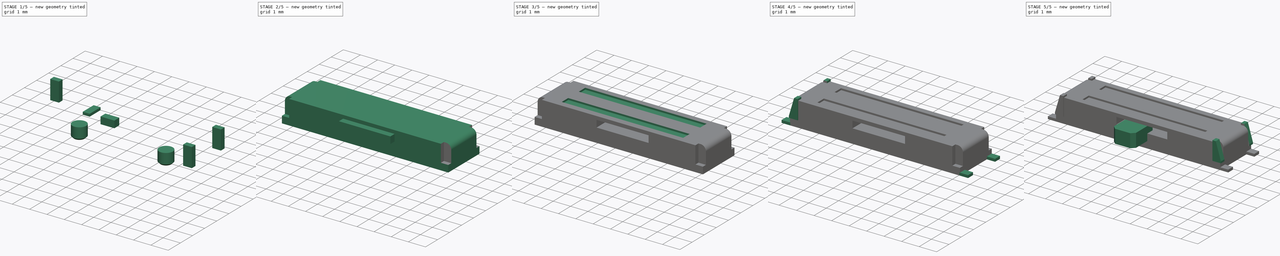
[diagram: build sequence overview — one tinted view per stage of 5, left to right]
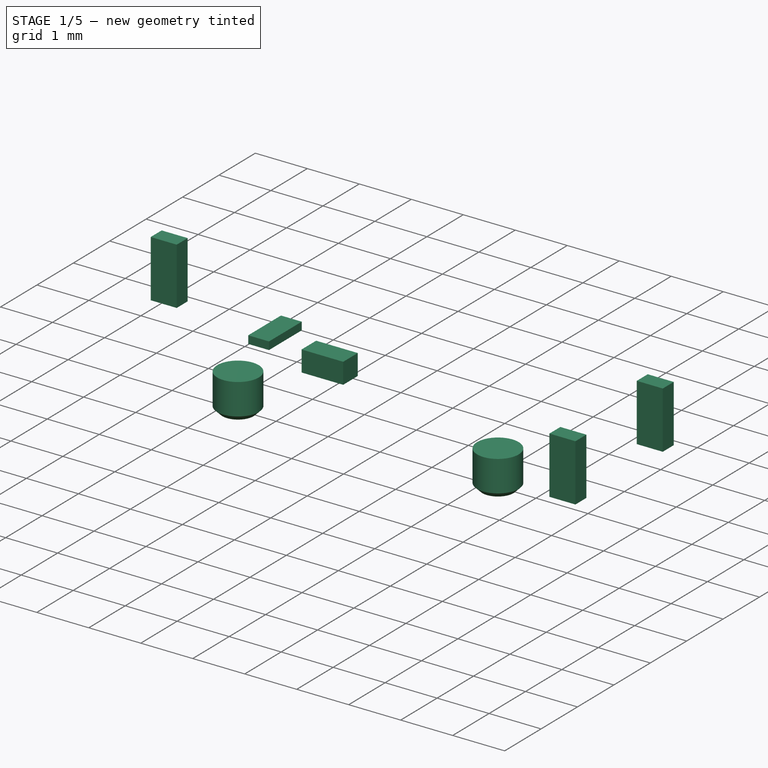
[diagram: stage 1 of 5 — iso view after this stage's code; geometry added in this stage tinted green]
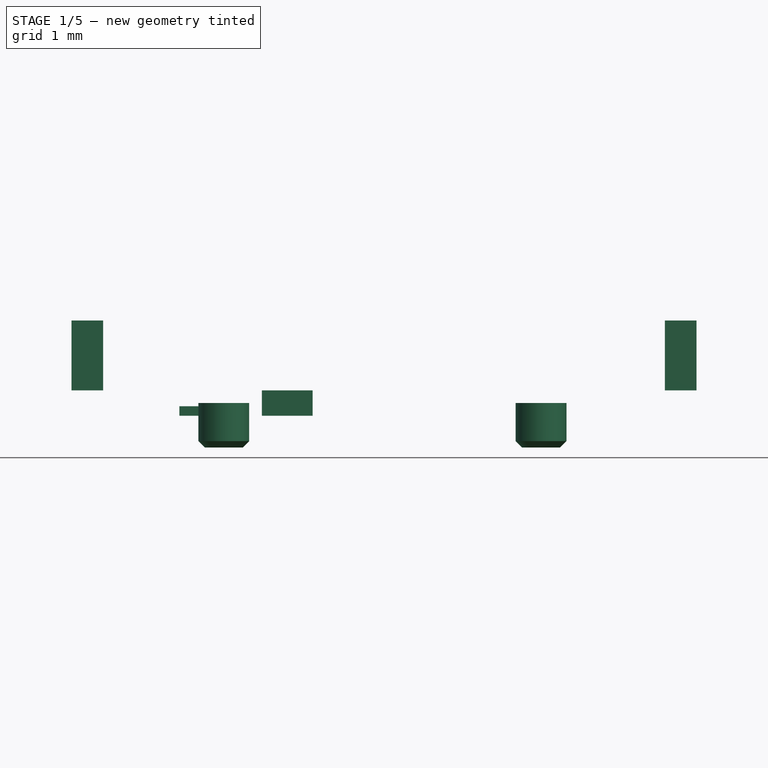
[diagram: stage 1 of 5 — front view after this stage's code; geometry added in this stage tinted green]
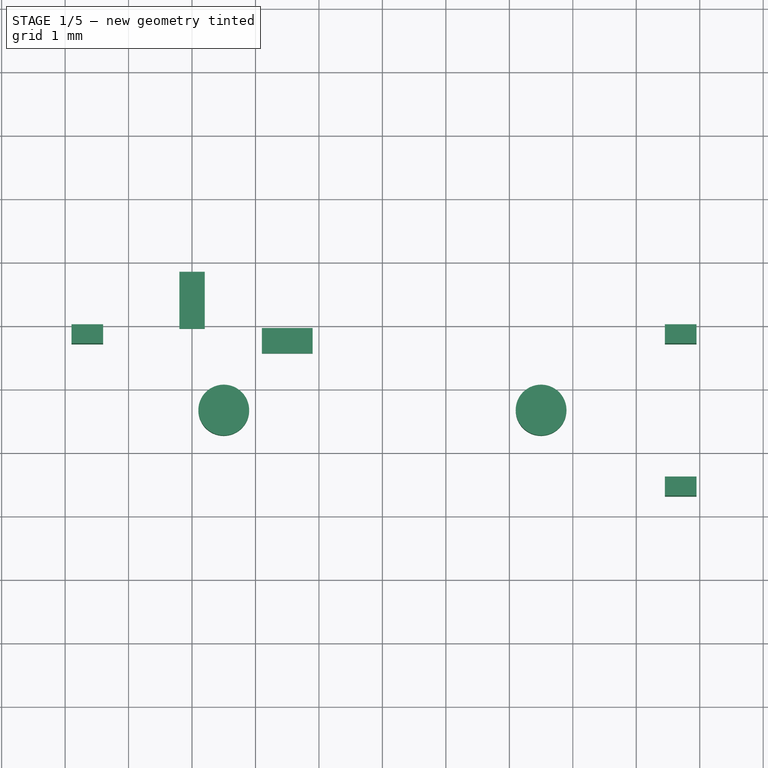
[diagram: stage 1 of 5 — top view after this stage's code; geometry added in this stage tinted green]
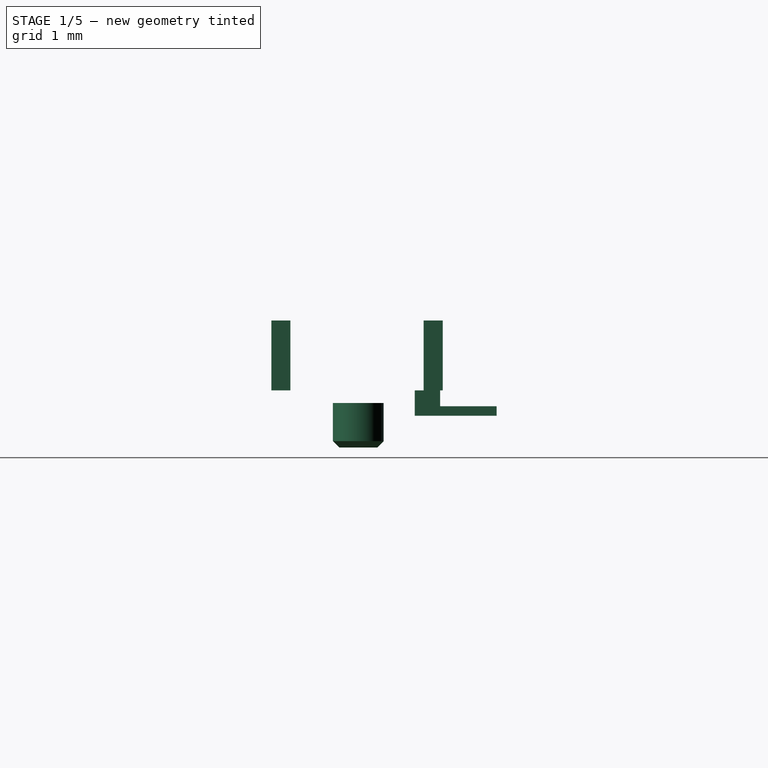
[diagram: stage 1 of 5 — right view after this stage's code; geometry added in this stage tinted green]
FCSTD DOCUMENT  (FreeCAD 0.17R11223 (Git))
Label: PCM13SMTR_07
License: All rights reserved
LicenseURL: http://en.wikipedia.org/wiki/All_rights_reserved
objects: Part::Box×25, Part::Chamfer×8, Part::Cut×7, Part::Cylinder×2, Part::Fillet×2, Sketcher::SketchObject×1, PartDesign::Pad×1, PartDesign::Body×1, Part::MultiFuse×1
note: 49 computed .brp shape members not serialized (recipe doc carries the construction recipe); baked Part::Feature solids carry a one-line shape summary decoded from their .brp

FEATURE [Part::Cylinder] Cylinder  label="Legg002"
  Angle = 360
  AttacherType = Attacher::AttachEngine3D
  Height = 0.7
  Placement = pos=(2.5,-0.33,-0.5) rot=(0,0,1;0rad)
  Radius = 0.4
FEATURE [Part::Cylinder] Cylinder001  label="Legg001"
  Angle = 360
  AttacherType = Attacher::AttachEngine3D
  Height = 0.7
  Placement = pos=(-2.5,-0.33,-0.5) rot=(0,0,1;0rad)
  Radius = 0.4
FEATURE [Part::Box] Box022  label="Kub015"
  AttacherType = Attacher::AttachEngine3D
  Height = 1.1
  Length = 0.5
  Placement = pos=(-4.9,0.7,0.4) rot=(0,0,1;0rad)
  Width = 0.3
FEATURE [Part::Box] Box023  label="Kub016"
  AttacherType = Attacher::AttachEngine3D
  Height = 1.1
  Length = 0.5
  Placement = pos=(4.45,-1.7,0.4) rot=(0,0,1;0rad)
  Width = 0.3
FEATURE [Part::Box] Box024  label="Kub017"
  AttacherType = Attacher::AttachEngine3D
  Height = 1.1
  Length = 0.5
  Placement = pos=(4.45,0.7,0.4) rot=(0,0,1;0rad)
  Width = 0.3
FEATURE [Part::Box] Box025  label="Leg008"
  AttacherType = Attacher::AttachEngine3D
  Height = 0.15
  Length = 0.4
  Placement = pos=(-3.2,0.95,0) rot=(0,0,1;0rad)
  Width = 0.9
FEATURE [Part::Box] Box026  label="Kub018"
  AttacherType = Attacher::AttachEngine3D
  Height = 0.4
  Length = 0.8
  Placement = pos=(-1.9,0.56,0) rot=(0,0,1;0rad)
  Width = 0.4
FEATURE [Part::Chamfer] Chamfer009
  Base = -> Cylinder001
  Edges = 1 edges r=0.1: [Edge3]
FEATURE [Part::Chamfer] Chamfer010
  Base = -> Cylinder
  Edges = 1 edges r=0.1: [Edge3]
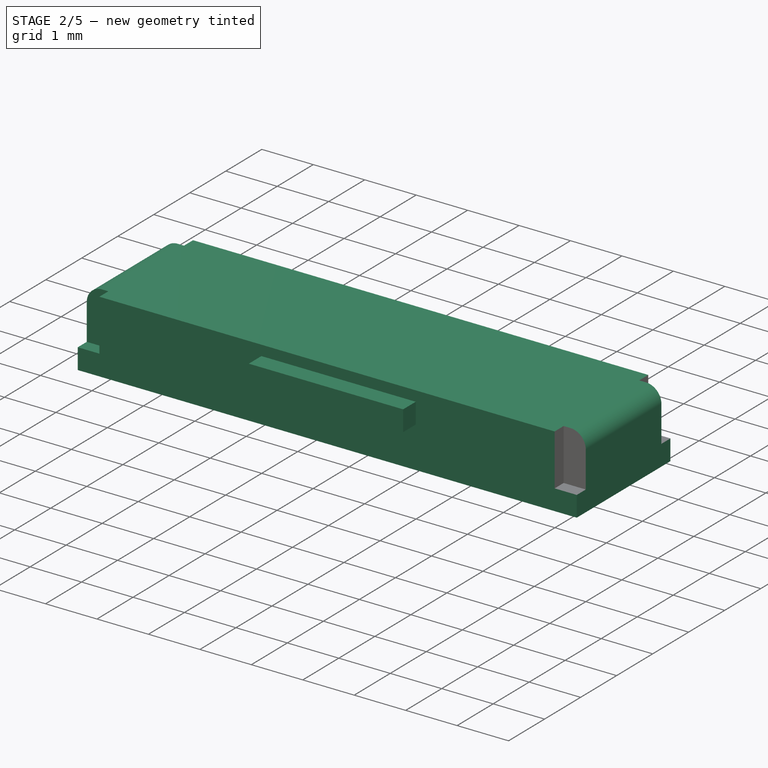
[diagram: stage 2 of 5 — iso view after this stage's code; geometry added in this stage tinted green]
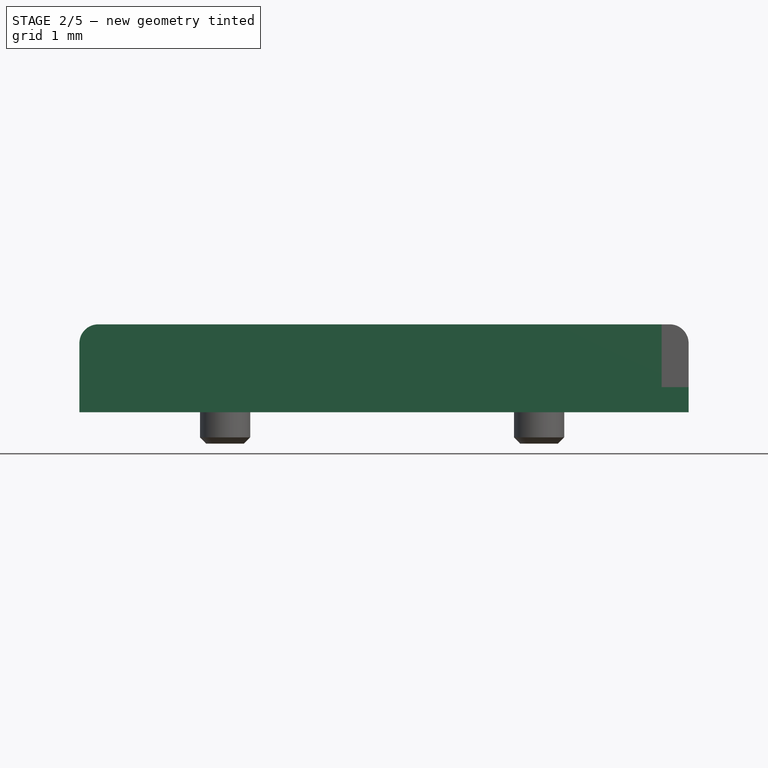
[diagram: stage 2 of 5 — front view after this stage's code; geometry added in this stage tinted green]
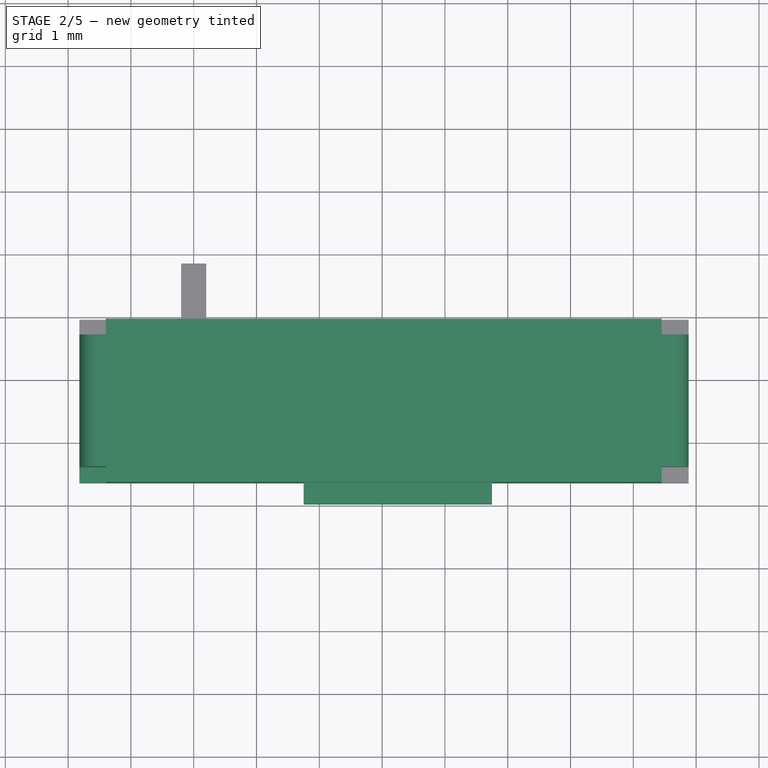
[diagram: stage 2 of 5 — top view after this stage's code; geometry added in this stage tinted green]
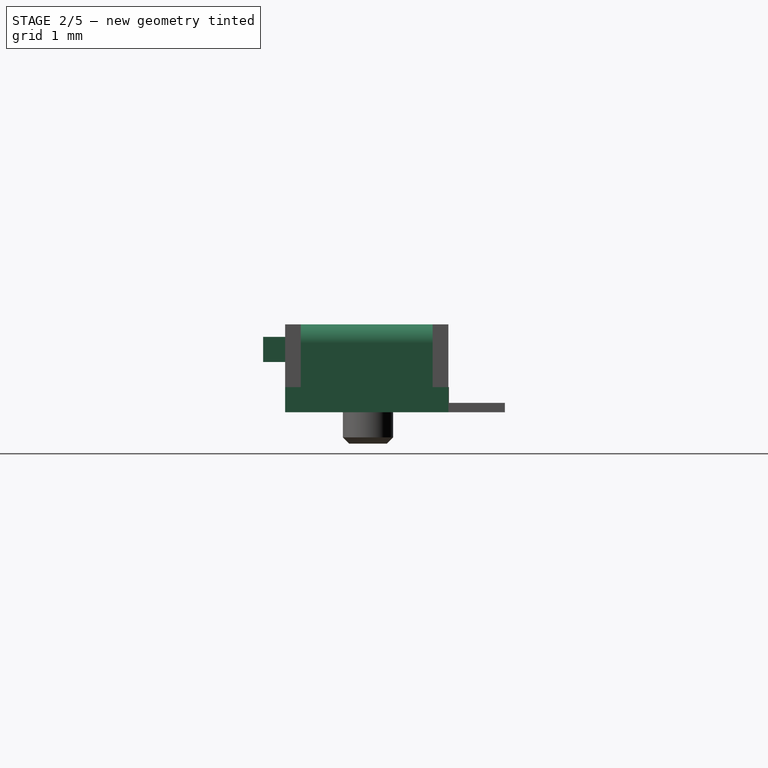
[diagram: stage 2 of 5 — right view after this stage's code; geometry added in this stage tinted green]
FEATURE [Sketcher::SketchObject] Sketch
  MapMode = 5
  Support = -> [XY_Plane]
  sketch-geometry (4):
    g0: LineSegment StartX=-4.82 StartY=0.95 StartZ=0 EndX=4.88 EndY=0.95 EndZ=0
    g1: LineSegment StartX=4.88 StartY=0.95 StartZ=0 EndX=4.88 EndY=-1.65 EndZ=0
    g2: LineSegment StartX=4.88 StartY=-1.65 StartZ=0 EndX=-4.82 EndY=-1.65 EndZ=0
    g3: LineSegment StartX=-4.82 StartY=-1.65 StartZ=0 EndX=-4.82 EndY=0.95 EndZ=0
  constraints (12):
    c: Coincident(g0,g1)
    c: Coincident(g1,g2)
    c: Coincident(g2,g3)
    c: Coincident(g3,g0)
    c: Horizontal(g0)
    c: Horizontal(g2)
    c: Vertical(g1)
    c: Vertical(g3)
    c: DistanceX(g0,g0) = 9.7
    c: DistanceY(g1,g0) = 2.6
    c: DistanceX(g2,g-1) = 4.82
    c: DistanceY(g-1,g0) = 0.95
FEATURE [PartDesign::Pad] Pad
  Length = 1.4
  Length2 = 100
  Profile = -> Sketch
  Type = 0
FEATURE [PartDesign::Body] Body
  Group = -> [Sketch,Pad]
  Origin = -> BodyOrigin
  Tip = -> Pad
FEATURE [Part::Box] Box  label="Kub"
  AttacherType = Attacher::AttachEngine3D
  Height = 0.4
  Length = 3
  Placement = pos=(-1.25,-2,0.8) rot=(0,0,1;0rad)
  Width = 2
FEATURE [Part::Fillet] Fillet
  Base = -> Pad
  Edges = 1 edges r=0.3: [Edge12]
FEATURE [Part::Box] Box021  label="Kub014"
  AttacherType = Attacher::AttachEngine3D
  Height = 1.1
  Length = 0.5
  Placement = pos=(-4.9,-1.7,0.4) rot=(0,0,1;0rad)
  Width = 0.3
FEATURE [Part::Cut] Cut
  Base = -> Fillet
  Tool = -> Box021
FEATURE [Part::Cut] Cut001
  Base = -> Cut
  Tool = -> Box022
FEATURE [Part::Cut] Cut002
  Base = -> Cut001
  Tool = -> Box023
FEATURE [Part::Fillet] Fillet007
  Base = -> Cut002
  Edges = 1 edges r=0.3: [Edge13]
FEATURE [Part::Cut] Cut003
  Base = -> Fillet007
  Tool = -> Box024
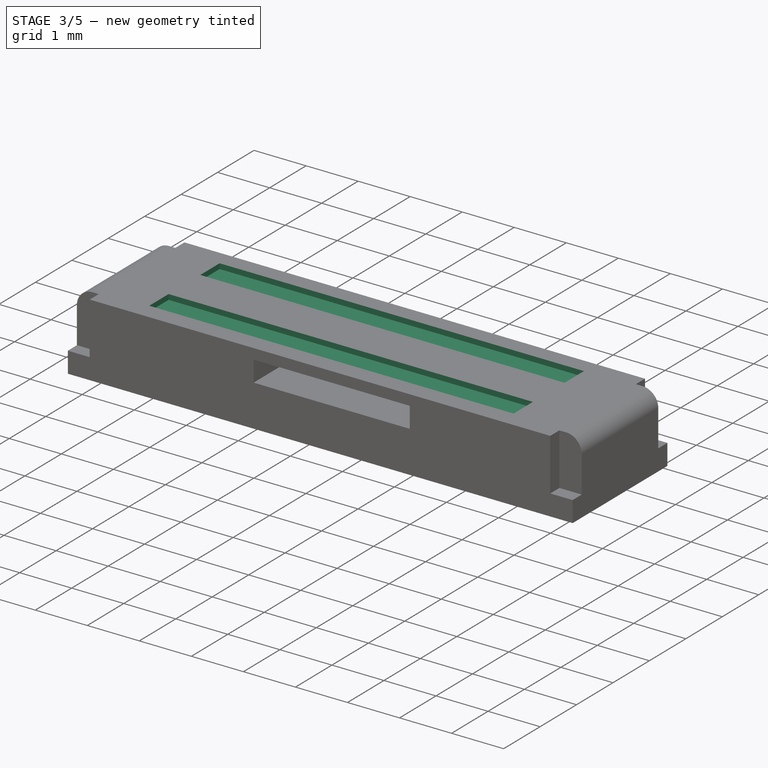
[diagram: stage 3 of 5 — iso view after this stage's code; geometry added in this stage tinted green]
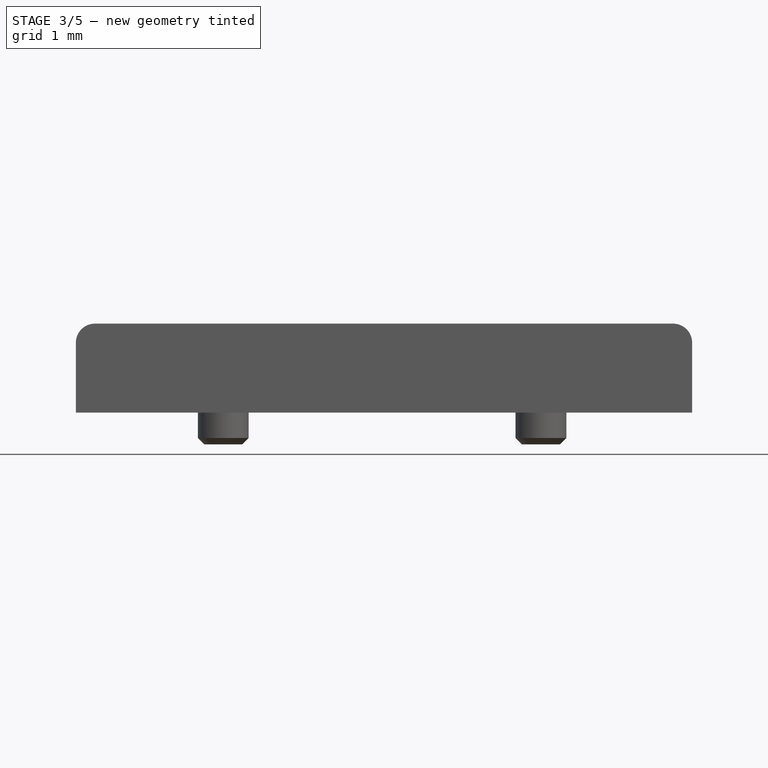
[diagram: stage 3 of 5 — front view after this stage's code; geometry added in this stage tinted green]
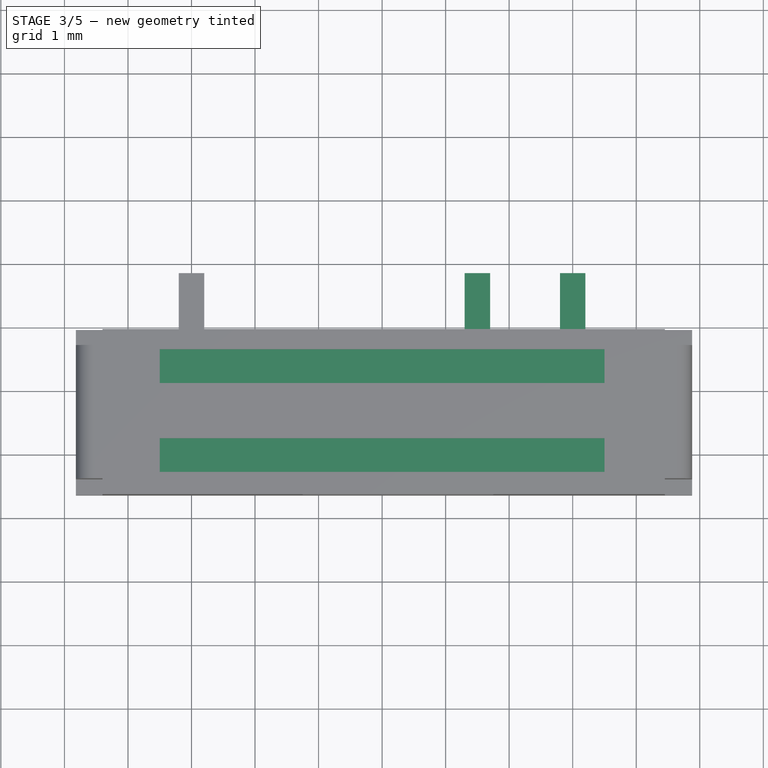
[diagram: stage 3 of 5 — top view after this stage's code; geometry added in this stage tinted green]
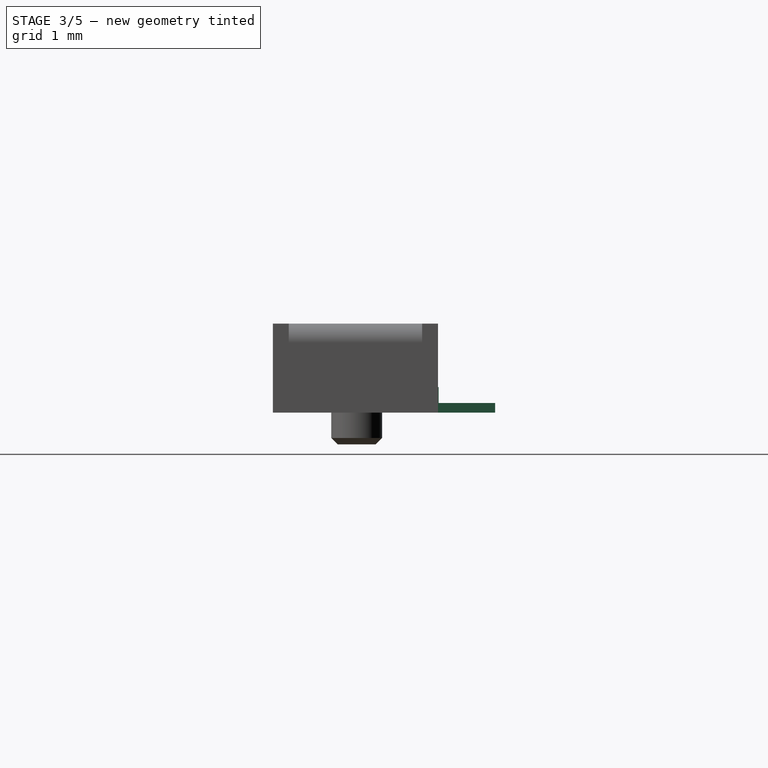
[diagram: stage 3 of 5 — right view after this stage's code; geometry added in this stage tinted green]
FEATURE [Part::Box] Box014  label="Leg006"
  AttacherType = Attacher::AttachEngine3D
  Height = 0.15
  Length = 0.4
  Placement = pos=(1.3,0.95,0) rot=(0,0,1;0rad)
  Width = 0.9
FEATURE [Part::Box] Box015  label="Leg007"
  AttacherType = Attacher::AttachEngine3D
  Height = 0.15
  Length = 0.4
  Placement = pos=(2.8,0.95,0) rot=(0,0,1;0rad)
  Width = 0.9
FEATURE [Part::Box] Box016  label="Kub009"
  AttacherType = Attacher::AttachEngine3D
  Height = 0.4
  Length = 0.8
  Placement = pos=(2.6,0.56,0) rot=(0,0,1;0rad)
  Width = 0.4
FEATURE [Part::Box] Box017  label="Kub010"
  AttacherType = Attacher::AttachEngine3D
  Height = 0.4
  Length = 0.8
  Placement = pos=(1.1,0.56,0) rot=(0,0,1;0rad)
  Width = 0.4
FEATURE [Part::Box] Box018  label="Kub011"
  AttacherType = Attacher::AttachEngine3D
  Height = 0.4
  Length = 0.8
  Placement = pos=(-3.4,0.56,0) rot=(0,0,1;0rad)
  Width = 0.4
FEATURE [Part::Box] Box019  label="Kub012"
  AttacherType = Attacher::AttachEngine3D
  Height = 0.2
  Length = 7
  Placement = pos=(-3.5,0.1,1.3) rot=(0,0,1;0rad)
  Width = 0.53
FEATURE [Part::Box] Box020  label="Kub013"
  AttacherType = Attacher::AttachEngine3D
  Height = 0.2
  Length = 7
  Placement = pos=(-3.5,-1.3,1.3) rot=(0,0,1;0rad)
  Width = 0.53
FEATURE [Part::Cut] Cut004
  Base = -> Cut003
  Tool = -> Box
FEATURE [Part::Cut] Cut005
  Base = -> Cut004
  Tool = -> Box019
FEATURE [Part::Cut] Cut006
  Base = -> Cut005
  Tool = -> Box020
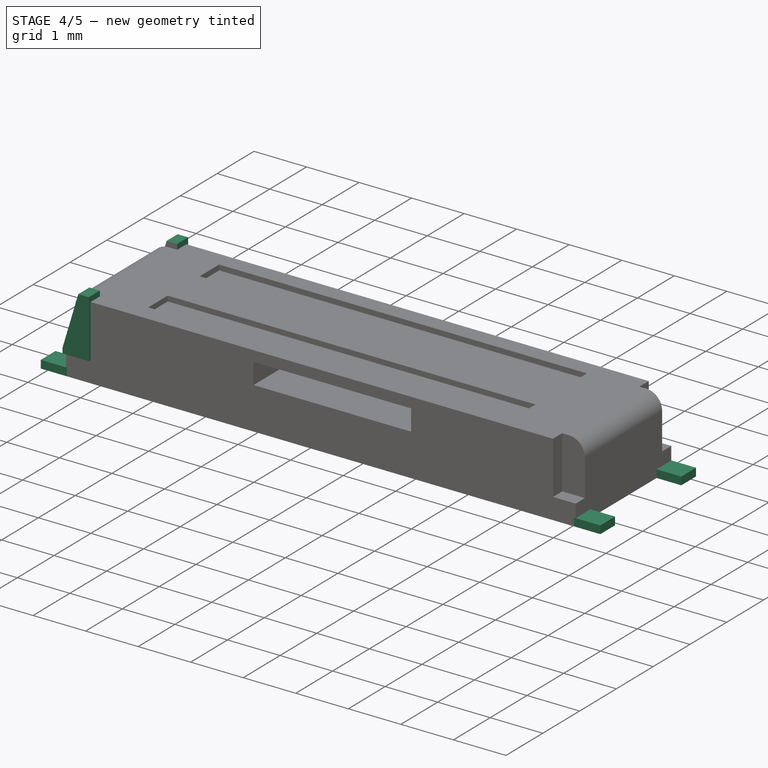
[diagram: stage 4 of 5 — iso view after this stage's code; geometry added in this stage tinted green]
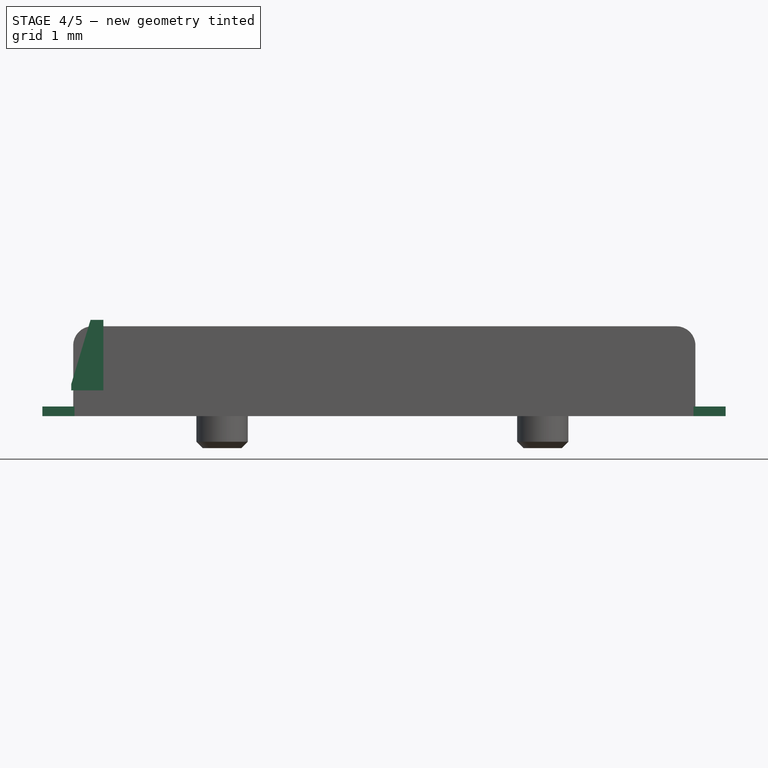
[diagram: stage 4 of 5 — front view after this stage's code; geometry added in this stage tinted green]
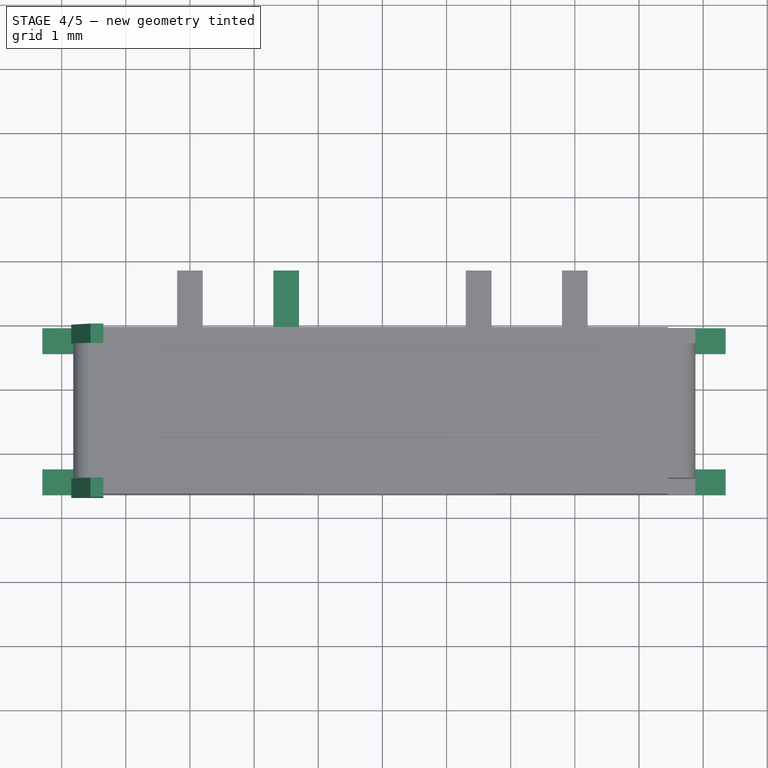
[diagram: stage 4 of 5 — top view after this stage's code; geometry added in this stage tinted green]
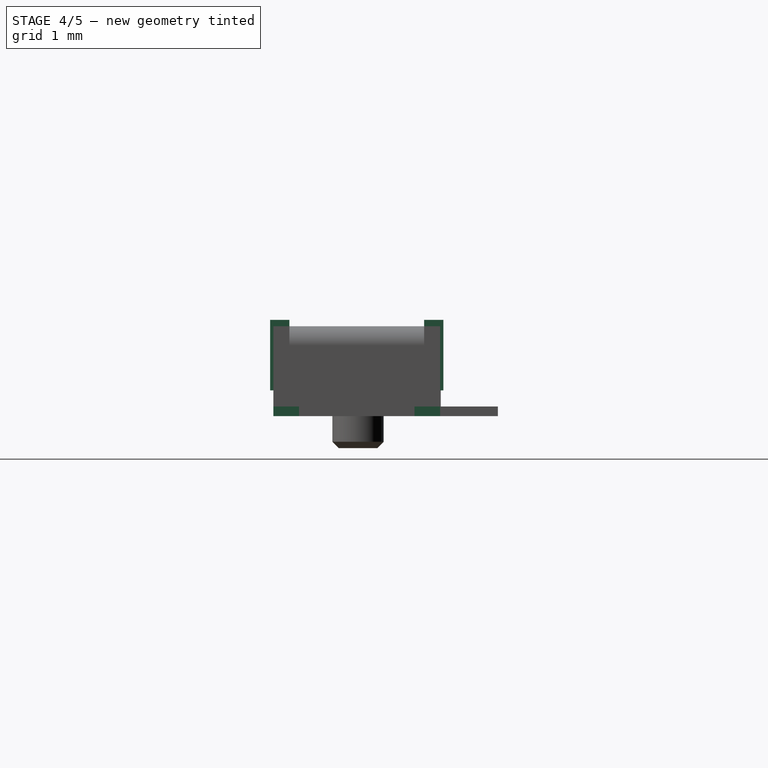
[diagram: stage 4 of 5 — right view after this stage's code; geometry added in this stage tinted green]
FEATURE [Part::Box] Box007  label="Kub007"
  AttacherType = Attacher::AttachEngine3D
  Height = 1.1
  Length = 0.5
  Placement = pos=(2.85,-1.3,0.4) rot=(0,0,1;0rad)
  Width = 0.3
FEATURE [Part::Chamfer] Chamfer007  label="Corner003"
  Base = -> Box007
  Edges = 1 edges: [Edge6 r1=1 r2=0.3]
  Placement = pos=(-1.5,-0.3,0) rot=(0,0,1;3.14159rad)
FEATURE [Part::Box] Box008  label="Kub008"
  AttacherType = Attacher::AttachEngine3D
  Height = 1.1
  Length = 0.5
  Placement = pos=(2.85,-1.3,0.4) rot=(0,0,1;0rad)
  Width = 0.3
FEATURE [Part::Chamfer] Chamfer008  label="Corner004"
  Base = -> Box008
  Edges = 1 edges: [Edge6 r1=1 r2=0.3]
  Placement = pos=(-1.5,-2.7,0) rot=(0,0,1;3.14159rad)
FEATURE [Part::Box] Box009  label="Leg001"
  AttacherType = Attacher::AttachEngine3D
  Height = 0.15
  Length = 0.5
  Placement = pos=(4.85,-1.65,0) rot=(0,0,1;0rad)
  Width = 0.4
FEATURE [Part::Box] Box010  label="Leg002"
  AttacherType = Attacher::AttachEngine3D
  Height = 0.15
  Length = 0.5
  Placement = pos=(4.85,0.55,0) rot=(0,0,1;0rad)
  Width = 0.4
FEATURE [Part::Box] Box011  label="Leg003"
  AttacherType = Attacher::AttachEngine3D
  Height = 0.15
  Length = 0.5
  Placement = pos=(-5.3,-1.65,0) rot=(0,0,1;0rad)
  Width = 0.4
FEATURE [Part::Box] Box012  label="Leg004"
  AttacherType = Attacher::AttachEngine3D
  Height = 0.15
  Length = 0.5
  Placement = pos=(-5.3,0.55,0) rot=(0,0,1;0rad)
  Width = 0.4
FEATURE [Part::Box] Box013  label="Leg005"
  AttacherType = Attacher::AttachEngine3D
  Height = 0.15
  Length = 0.4
  Placement = pos=(-1.7,0.95,0) rot=(0,0,1;0rad)
  Width = 0.9
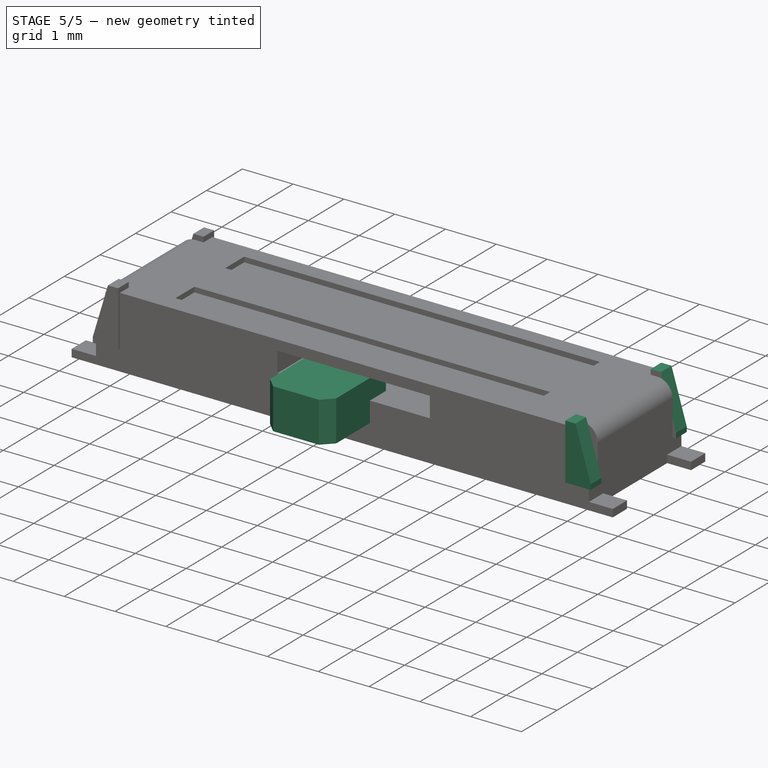
[diagram: stage 5 of 5 — iso view after this stage's code; geometry added in this stage tinted green]
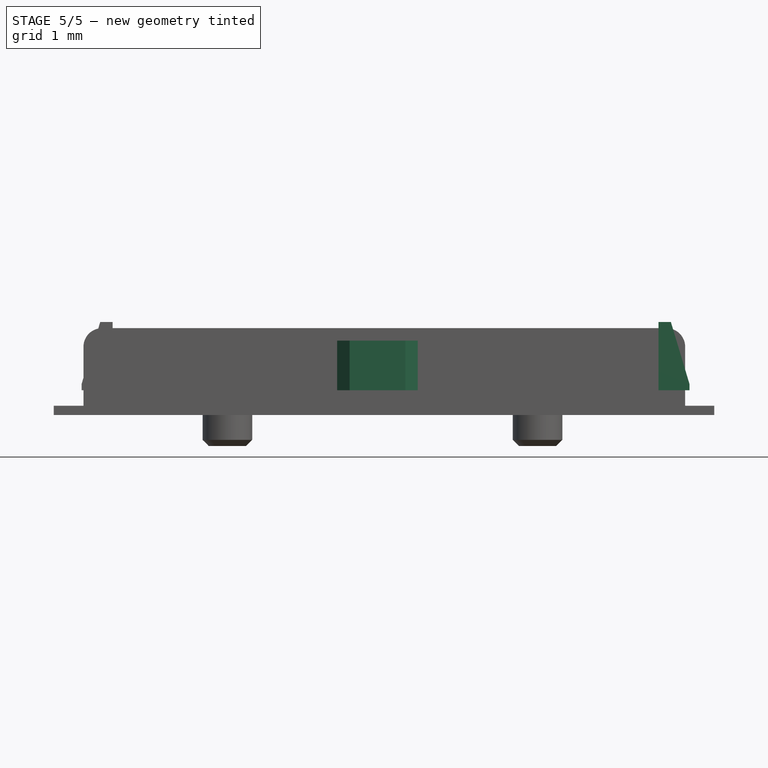
[diagram: stage 5 of 5 — front view after this stage's code; geometry added in this stage tinted green]
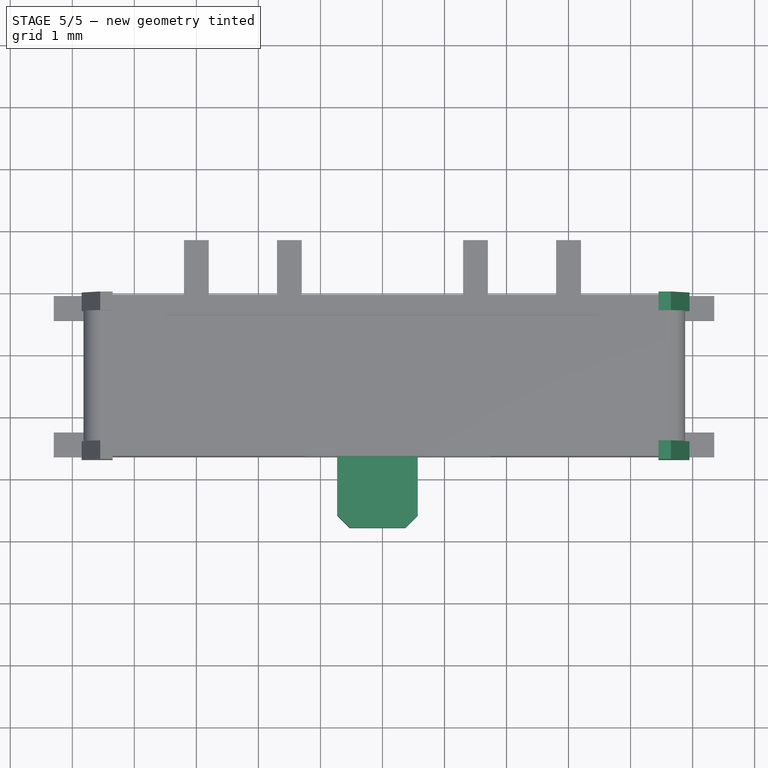
[diagram: stage 5 of 5 — top view after this stage's code; geometry added in this stage tinted green]
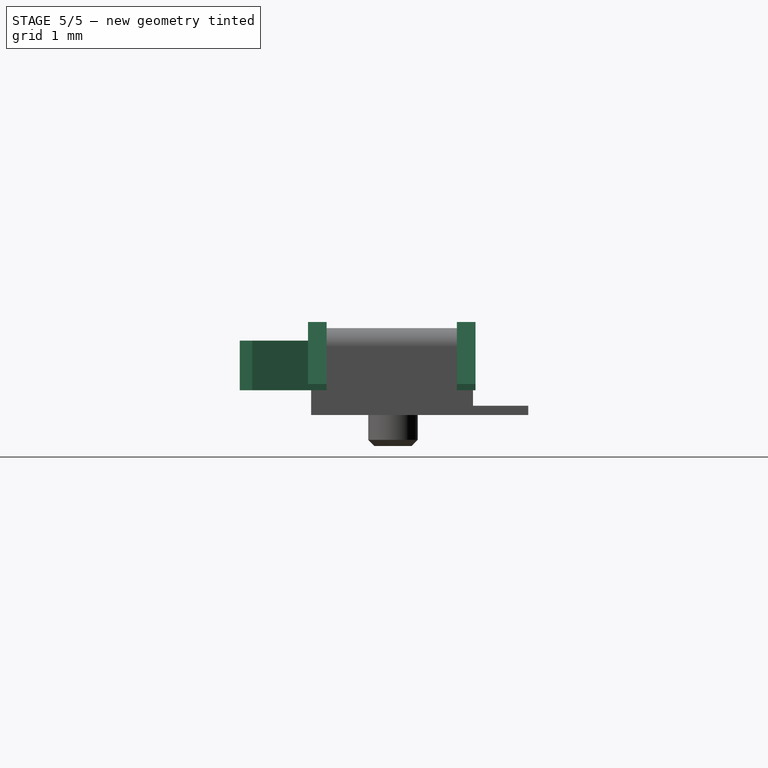
[diagram: stage 5 of 5 — right view after this stage's code; geometry added in this stage tinted green]
FEATURE [Part::Box] Box001  label="Kub001"
  AttacherType = Attacher::AttachEngine3D
  Height = 0.4
  Length = 1.3
  Placement = pos=(-0.08,-1.6,0.8) rot=(0,0,1;0rad)
  Width = 0.4
FEATURE [Part::Box] Box002  label="Kub002"
  AttacherType = Attacher::AttachEngine3D
  Height = 0.8
  Length = 1.3
  Placement = pos=(-0.08,-2.8,0.4) rot=(0,0,1;0rad)
  Width = 1.3
FEATURE [Part::Chamfer] Chamfer
  Base = -> Box002
  Edges = 1 edges r=0.2: [Edge1]
FEATURE [Part::Chamfer] Chamfer001
  Base = -> Chamfer
  Edges = 1 edges r=0.2: [Edge15]
FEATURE [Part::MultiFuse] Fusion
  Placement = pos=(-0.65,0,0) rot=(0,0,1;0rad)
  Shapes = -> [Box001,Chamfer001]
FEATURE [Part::Box] Box005  label="Kub005"
  AttacherType = Attacher::AttachEngine3D
  Height = 1.1
  Length = 0.5
  Placement = pos=(2.85,-1.3,0.4) rot=(0,0,1;0rad)
  Width = 0.3
FEATURE [Part::Chamfer] Chamfer005  label="Corner001"
  Base = -> Box005
  Edges = 1 edges: [Edge6 r1=1 r2=0.3]
  Placement = pos=(1.6,-0.4,0) rot=(0,0,1;0rad)
FEATURE [Part::Box] Box006  label="Kub006"
  AttacherType = Attacher::AttachEngine3D
  Height = 1.1
  Length = 0.5
  Placement = pos=(2.85,-1.3,0.4) rot=(0,0,1;0rad)
  Width = 0.3
FEATURE [Part::Chamfer] Chamfer006  label="Corner002"
  Base = -> Box006
  Edges = 1 edges: [Edge6 r1=1 r2=0.3]
  Placement = pos=(1.6,2,0) rot=(0,0,1;0rad)
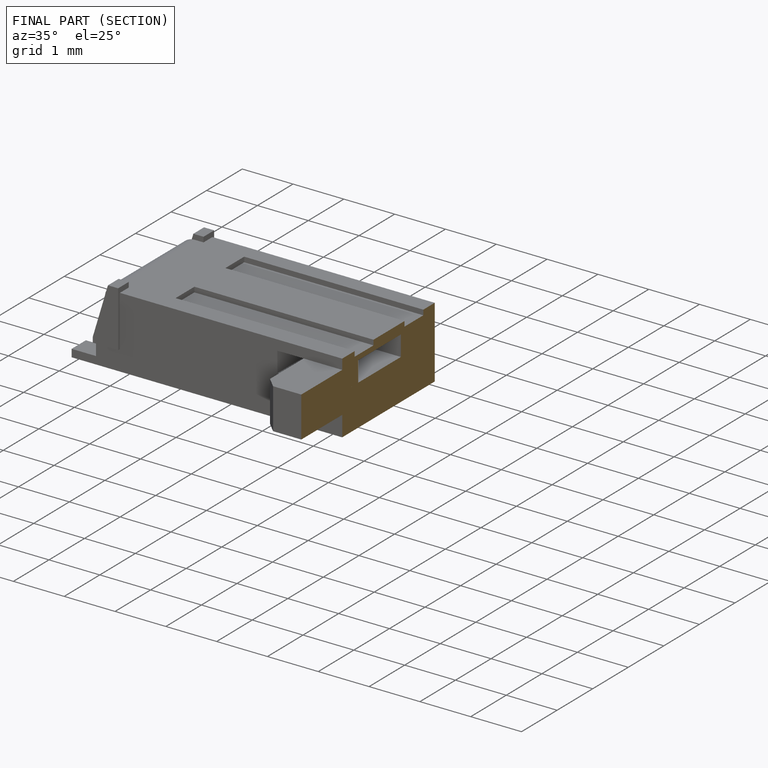
[diagram: finished part — half-section view (interior)]
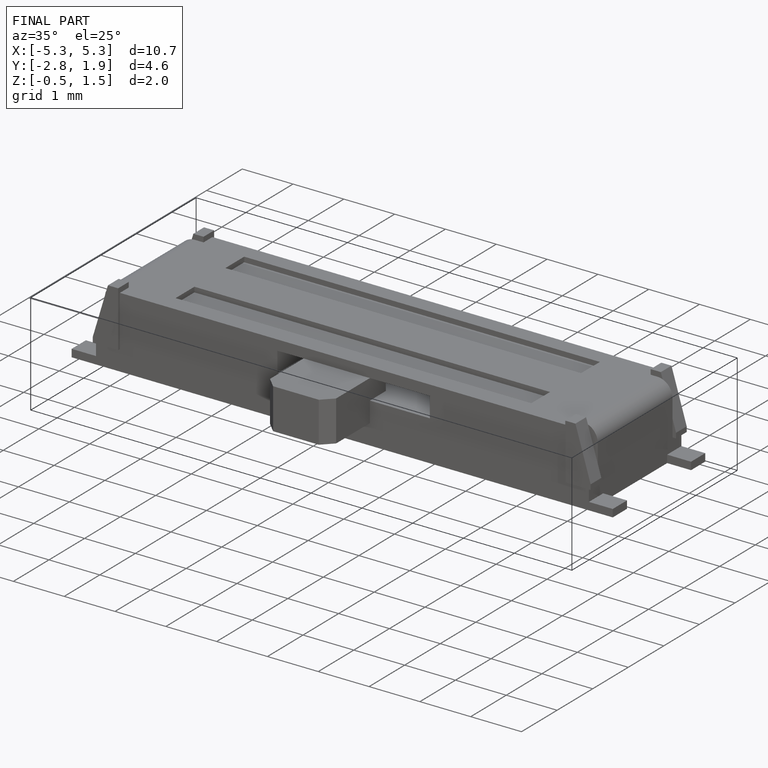
[diagram: finished part — iso view with bounding-box wireframe]
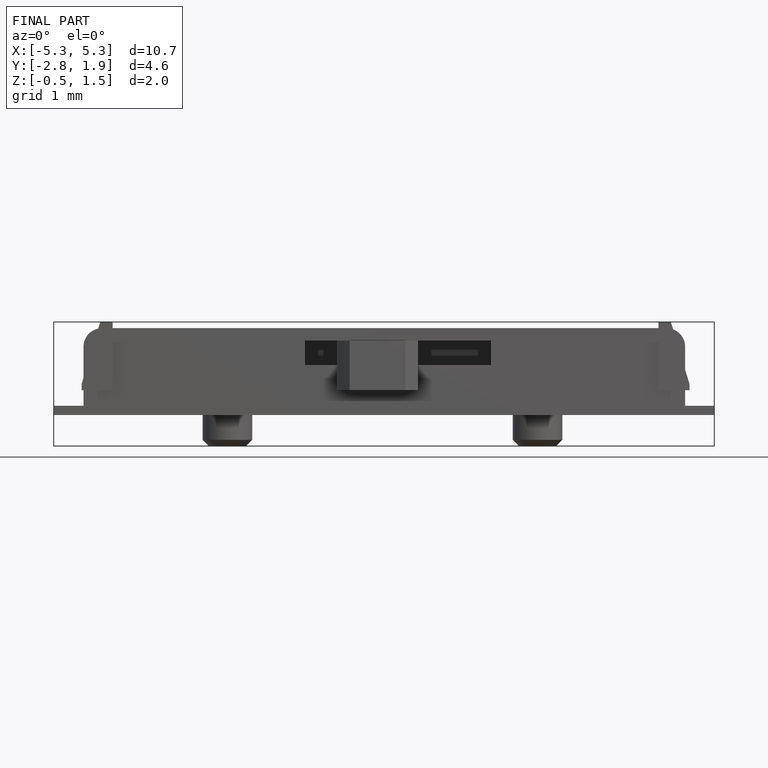
[diagram: finished part — front view with bounding-box wireframe]
